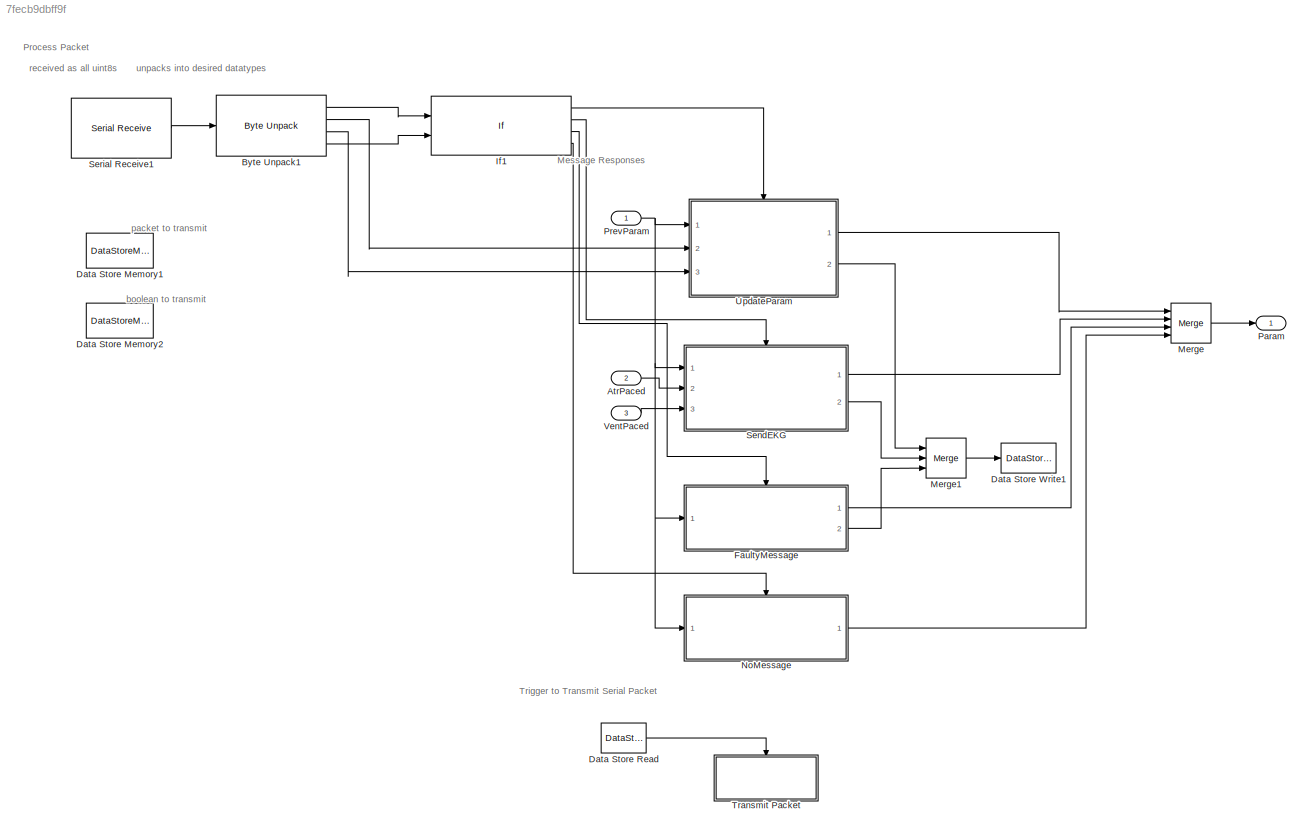
MODEL slx_7fecb9dbff9f
KIND model
CONFIG AbsTol = auto
CONFIG EnableMultiTasking = on
CONFIG FixedStep = 1e-3
CONFIG MaxStep = auto
CONFIG MinStep = auto
CONFIG RelTol = 1e-3
CONFIG SampleTimeConstraint = Unconstrained
CONFIG Solver = FixedStepAuto
CONFIG SolverName = FixedStepAuto
CONFIG StartTime = 0.0
CONFIG StopTime = 10.0
BLOCK [Inport] AtrPaced
  Port = 2
BLOCK [Reference] Byte Unpack1  REF=etargetslib/Byte Unpack
  Ports = [1, 4]
  SourceBlock = etargetslib/Byte Unpack
  SourceProductBaseCode = ME
  SourceType = Byte Unpack
BLOCK [DataStoreMemory] Data Store Memory1
  DataStoreName = Message
  InitialValue = [0; 0; 0; 0; 0; 0; 0; 0; 0; 0; 0; 0; 0; 0; 0; 0]
  OutDataTypeStr = uint8
  ReadBeforeWriteMsg = warning
  ShowAdditionalParam = off
  WriteAfterReadMsg = warning
  WriteAfterWriteMsg = warning
BLOCK [DataStoreMemory] Data Store Memory2
  DataStoreName = Transmit
  ReadBeforeWriteMsg = warning
  ShowAdditionalParam = off
  WriteAfterReadMsg = warning
  WriteAfterWriteMsg = warning
BLOCK [DataStoreRead] Data Store Read
  DataStoreName = Transmit
  Ports = [0, 1]
BLOCK [DataStoreWrite] Data Store Write1
  DataStoreName = Message
  Ports = [1]
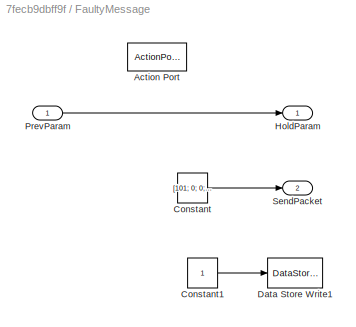
BLOCK [SubSystem] FaultyMessage
  Ports = [1, 2, 0, 0, 0, 0, 0, 1]
  RequestExecContextInheritance = off
  TreatAsAtomicUnit = on
BLOCK [ActionPort] FaultyMessage/Action Port
  ActionPortLabel = elseif( u1~=0 & u2~=0)
BLOCK [Constant] FaultyMessage/Constant
  OutDataTypeStr = uint8
  Value = [101; 0; 0; 0; 0; 0; 0; 0; 0; 0; 0; 0; 0; 0; 0; 42]
BLOCK [Constant] FaultyMessage/Constant1
BLOCK [DataStoreWrite] FaultyMessage/Data Store Write1
  DataStoreName = Transmit
  Ports = [1]
BLOCK [Outport] FaultyMessage/HoldParam
BLOCK [Inport] FaultyMessage/PrevParam
BLOCK [Outport] FaultyMessage/SendPacket
  Port = 2
BLOCK [If] If1
  ElseIfExpressions = u1 == 85 & u2 == 42, u1~=0 & u2~=0
  IfExpression = u1 == 34 & u2 == 42
  NumInputs = 2
  Ports = [2, 4]
BLOCK [Merge] Merge
  Inputs = 4
  Ports = [4, 1]
BLOCK [Merge] Merge1
  Inputs = 3
  Ports = [3, 1]
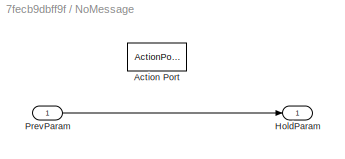
BLOCK [SubSystem] NoMessage
  Ports = [1, 1, 0, 0, 0, 0, 0, 1]
  RequestExecContextInheritance = off
  TreatAsAtomicUnit = on
BLOCK [ActionPort] NoMessage/Action Port
  ActionPortLabel = else
BLOCK [Outport] NoMessage/HoldParam
BLOCK [Inport] NoMessage/PrevParam
BLOCK [Outport] Param
BLOCK [Inport] PrevParam
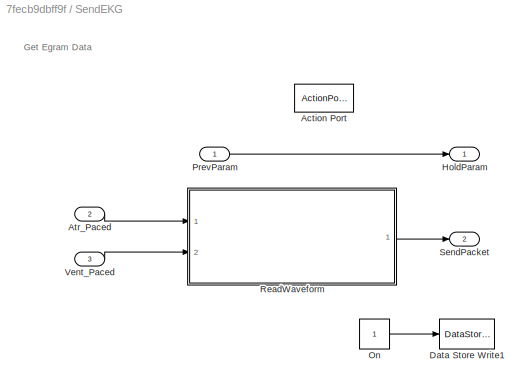
BLOCK [SubSystem] SendEKG
  Ports = [3, 2, 0, 0, 0, 0, 0, 1]
  RequestExecContextInheritance = off
  TreatAsAtomicUnit = on
BLOCK [ActionPort] SendEKG/Action Port
  ActionPortLabel = elseif(u1 == 85 & u2 == 42)
BLOCK [Inport] SendEKG/Atr_Paced
  Port = 2
BLOCK [DataStoreWrite] SendEKG/Data Store Write1
  DataStoreName = Transmit
  Ports = [1]
BLOCK [Outport] SendEKG/HoldParam
BLOCK [Constant] SendEKG/On
BLOCK [Inport] SendEKG/PrevParam
BLOCK [ModelReference] SendEKG/ReadWaveform
  ModelNameDialog = ReadWaveform.slx
  ModelReferenceVersion = 1.10
  Ports = [2, 1]
BLOCK [Outport] SendEKG/SendPacket
  Port = 2
BLOCK [Inport] SendEKG/Vent_Paced
  Port = 3
BLOCK [Reference] Serial Receive1  REF=frdmk64flib/Serial Receive
  Ports = [0, 1]
  SourceBlock = frdmk64flib/Serial Receive
  SourceProductBaseCode = EC_FRDM_K64F
  SourceType = freedomk64f.SCIRead
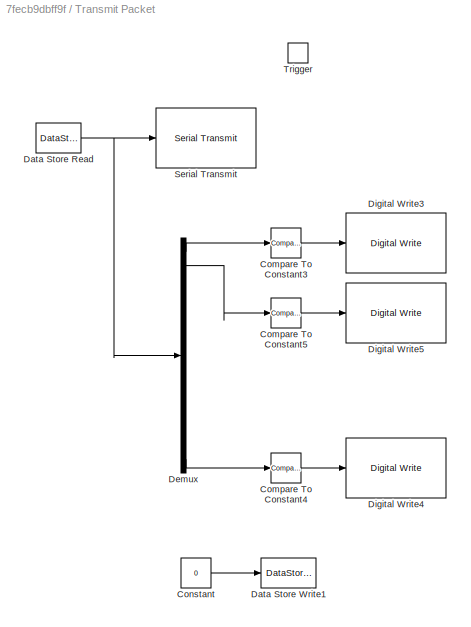
BLOCK [SubSystem] Transmit Packet
  Ports = [0, 0, 0, 1]
  RequestExecContextInheritance = off
  TreatAsAtomicUnit = on
BLOCK [Reference] Transmit Packet/Compare To Constant3  REF=simulink/Logic and Bit
Operations/Compare
To Constant
  Commented = on
  Ports = [1, 1]
  SourceBlock = simulink/Logic and Bit\nOperations/Compare\nTo Constant
  SourceProductBaseCode = SL
  SourceType = Compare To Constant
BLOCK [Reference] Transmit Packet/Compare To Constant4  REF=simulink/Logic and Bit
Operations/Compare
To Constant
  Commented = on
  Ports = [1, 1]
  SourceBlock = simulink/Logic and Bit\nOperations/Compare\nTo Constant
  SourceProductBaseCode = SL
  SourceType = Compare To Constant
BLOCK [Reference] Transmit Packet/Compare To Constant5  REF=simulink/Logic and Bit
Operations/Compare
To Constant
  Commented = on
  Ports = [1, 1]
  SourceBlock = simulink/Logic and Bit\nOperations/Compare\nTo Constant
  SourceProductBaseCode = SL
  SourceType = Compare To Constant
BLOCK [Constant] Transmit Packet/Constant
  Value = 0
BLOCK [DataStoreRead] Transmit Packet/Data Store Read
  DataStoreName = Message
  Ports = [0, 1]
BLOCK [DataStoreWrite] Transmit Packet/Data Store Write1
  DataStoreName = Transmit
  Ports = [1]
BLOCK [Demux] Transmit Packet/Demux
  Commented = on
  Outputs = 16
  Ports = [1, 16]
BLOCK [Reference] Transmit Packet/Digital Write3  REF=frdmk64flib/Digital Write
  Commented = on
  Ports = [1]
  SourceBlock = frdmk64flib/Digital Write
  SourceProductBaseCode = EC_FRDM_K64F
  SourceType = freedomk64f.DigitalWrite
BLOCK [Reference] Transmit Packet/Digital Write4  REF=frdmk64flib/Digital Write
  Commented = on
  Ports = [1]
  SourceBlock = frdmk64flib/Digital Write
  SourceProductBaseCode = EC_FRDM_K64F
  SourceType = freedomk64f.DigitalWrite
BLOCK [Reference] Transmit Packet/Digital Write5  REF=frdmk64flib/Digital Write
  Commented = on
  Ports = [1]
  SourceBlock = frdmk64flib/Digital Write
  SourceProductBaseCode = EC_FRDM_K64F
  SourceType = freedomk64f.DigitalWrite
BLOCK [Reference] Transmit Packet/Serial Transmit  REF=frdmk64flib/Serial Transmit
  Ports = [1]
  SourceBlock = frdmk64flib/Serial Transmit
  SourceProductBaseCode = EC_FRDM_K64F
  SourceType = freedomk64f.SCIWrite
BLOCK [TriggerPort] Transmit Packet/Trigger
  PortDimensions = 1
  Ports = []
  StatesWhenEnabling = held
  VariantControl = Variant
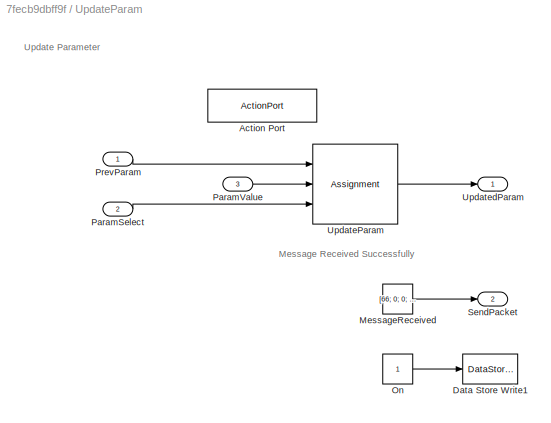
BLOCK [SubSystem] UpdateParam
  Ports = [3, 2, 0, 0, 0, 0, 0, 1]
  RequestExecContextInheritance = off
BLOCK [ActionPort] UpdateParam/Action Port
  ActionPortLabel = if(u1 == 34 & u2 == 42)
BLOCK [DataStoreWrite] UpdateParam/Data Store Write1
  DataStoreName = Transmit
  Ports = [1]
BLOCK [Constant] UpdateParam/MessageReceived
  OutDataTypeStr = uint8
  Value = [66; 0; 0; 0; 0; 0; 0; 0; 0; 0; 0; 0; 0; 0; 0; 42]
BLOCK [Constant] UpdateParam/On
BLOCK [Inport] UpdateParam/ParamSelect
  Port = 2
BLOCK [Inport] UpdateParam/ParamValue
  Port = 3
BLOCK [Inport] UpdateParam/PrevParam
  OutDataTypeStr = single
  PortDimensions = [1 19]
BLOCK [Outport] UpdateParam/SendPacket
  Port = 2
BLOCK [Assignment] UpdateParam/UpdateParam
  DiagnosticForDimensions = Warning
  IndexOptions = Index vector (port)
  Indices = 1
  OutputSizes = 1
  Ports = [3, 1]
BLOCK [Outport] UpdateParam/UpdatedParam
BLOCK [Inport] VentPaced
  Port = 3
ANNOTATION (root): Message Responses
ANNOTATION (root): Process Packet
ANNOTATION (root): Trigger to Transmit Serial Packet
ANNOTATION (root): boolean to transmit
ANNOTATION (root): packet to transmit
ANNOTATION (root): received as all uint8s
ANNOTATION (root): unpacks into desired datatypes
ANNOTATION SendEKG: Get Egram Data
ANNOTATION UpdateParam: Message Received Successfully
ANNOTATION UpdateParam: Update Parameter
LINE AtrPaced:1 -> SendEKG:2
LINE Byte Unpack1:1 -> If1:1
LINE Byte Unpack1:2 -> UpdateParam:2
LINE Byte Unpack1:3 -> UpdateParam:3
LINE Byte Unpack1:4 -> If1:2
LINE Data Store Read:1 -> Transmit Packet:trigger
LINE FaultyMessage/Constant1:1 -> FaultyMessage/Data Store Write1:1
LINE FaultyMessage/Constant:1 -> FaultyMessage/SendPacket:1
LINE FaultyMessage/PrevParam:1 -> FaultyMessage/HoldParam:1
LINE FaultyMessage:1 -> Merge:3
LINE FaultyMessage:2 -> Merge1:3
LINE If1:1 -> UpdateParam:ifaction
LINE If1:2 -> SendEKG:ifaction
LINE If1:3 -> FaultyMessage:ifaction
LINE If1:4 -> NoMessage:ifaction
LINE Merge1:1 -> Data Store Write1:1
LINE Merge:1 -> Param:1
LINE NoMessage/PrevParam:1 -> NoMessage/HoldParam:1
LINE NoMessage:1 -> Merge:4
NET PrevParam:1 -> FaultyMessage:1, NoMessage:1, SendEKG:1, UpdateParam:1
LINE SendEKG/Atr_Paced:1 -> SendEKG/ReadWaveform:1
LINE SendEKG/On:1 -> SendEKG/Data Store Write1:1
LINE SendEKG/PrevParam:1 -> SendEKG/HoldParam:1
LINE SendEKG/ReadWaveform:1 -> SendEKG/SendPacket:1
LINE SendEKG/Vent_Paced:1 -> SendEKG/ReadWaveform:2
LINE SendEKG:1 -> Merge:2
LINE SendEKG:2 -> Merge1:2
LINE Serial Receive1:1 -> Byte Unpack1:1
LINE Transmit Packet/Compare To Constant3:1 -> Transmit Packet/Digital Write3:1
LINE Transmit Packet/Compare To Constant4:1 -> Transmit Packet/Digital Write4:1
LINE Transmit Packet/Compare To Constant5:1 -> Transmit Packet/Digital Write5:1
LINE Transmit Packet/Constant:1 -> Transmit Packet/Data Store Write1:1
NET Transmit Packet/Data Store Read:1 -> Transmit Packet/Demux:1, Transmit Packet/Serial Transmit:1
LINE Transmit Packet/Demux:1 -> Transmit Packet/Compare To Constant3:1
LINE Transmit Packet/Demux:16 -> Transmit Packet/Compare To Constant4:1
LINE Transmit Packet/Demux:2 -> Transmit Packet/Compare To Constant5:1
LINE UpdateParam/MessageReceived:1 -> UpdateParam/SendPacket:1
LINE UpdateParam/On:1 -> UpdateParam/Data Store Write1:1
LINE UpdateParam/ParamSelect:1 -> UpdateParam/UpdateParam:3
LINE UpdateParam/ParamValue:1 -> UpdateParam/UpdateParam:2
LINE UpdateParam/PrevParam:1 -> UpdateParam/UpdateParam:1
LINE UpdateParam/UpdateParam:1 -> UpdateParam/UpdatedParam:1
LINE UpdateParam:1 -> Merge:1
LINE UpdateParam:2 -> Merge1:1
LINE VentPaced:1 -> SendEKG:3
note: NET lines group one-source signal fan-out (src -> all destinations, sorted); 1:1 wires keep LINE
